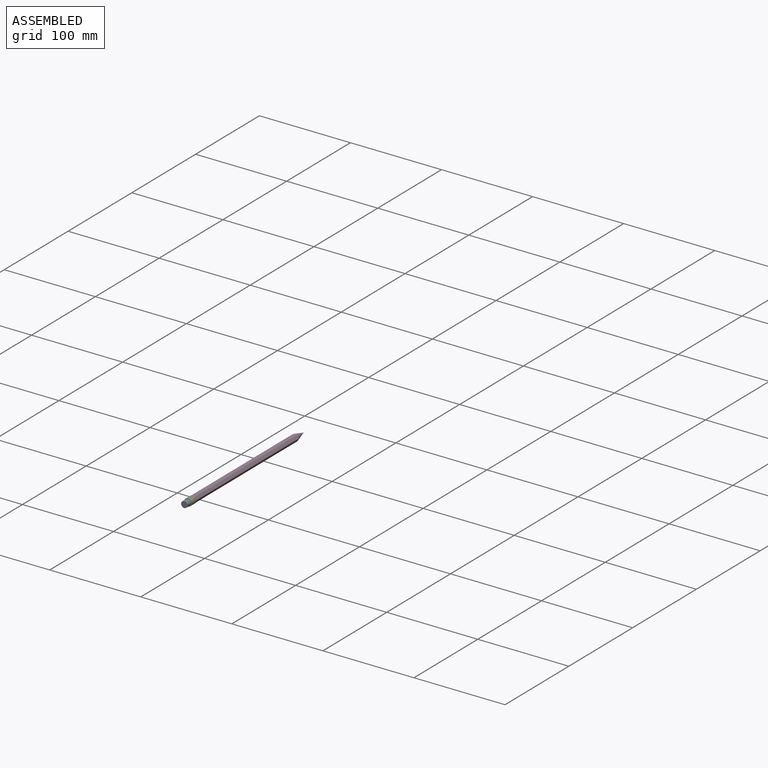
[diagram: assembled view]
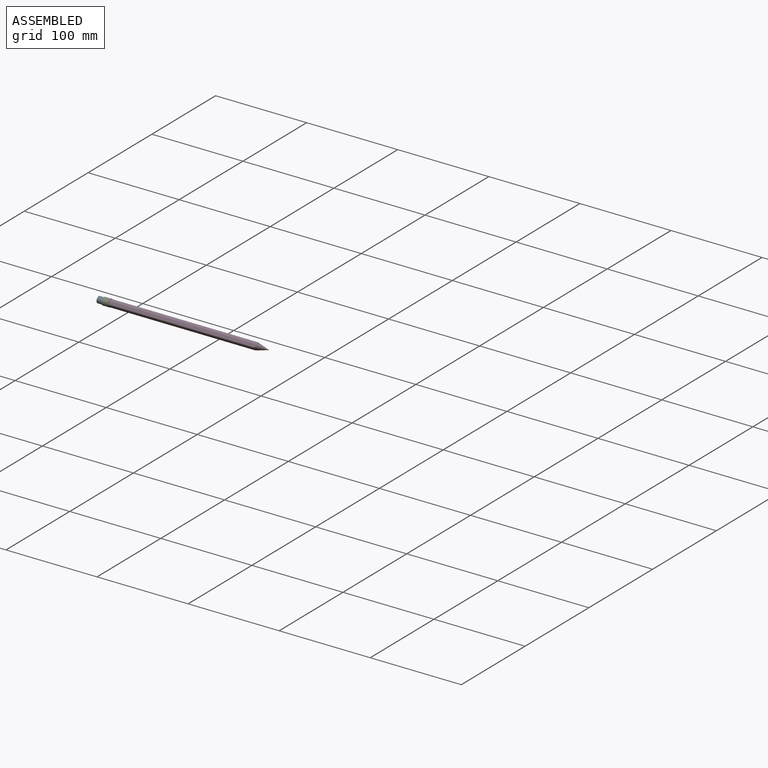
[diagram: assembled view, second angle]
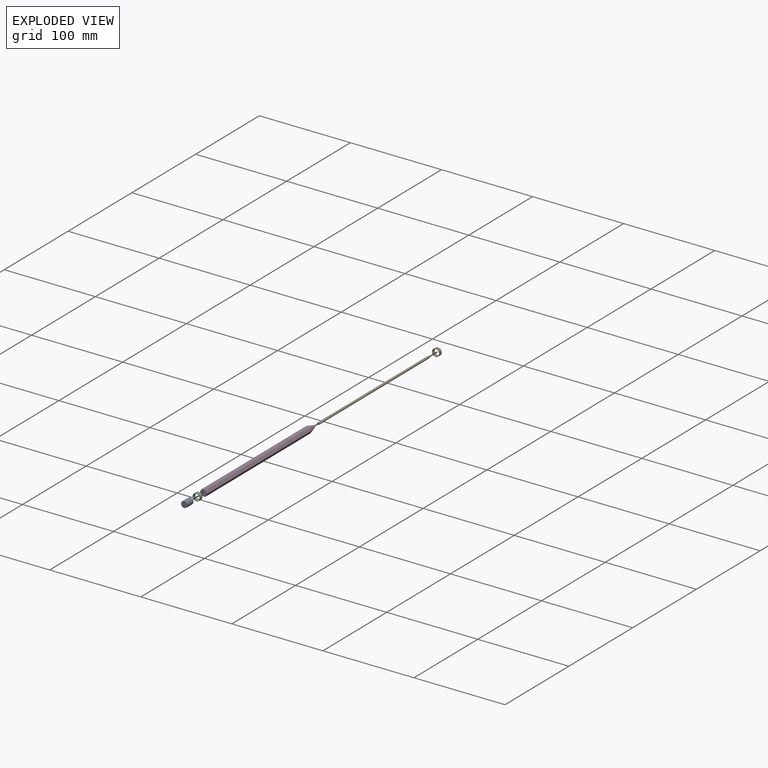
[diagram: exploded view]
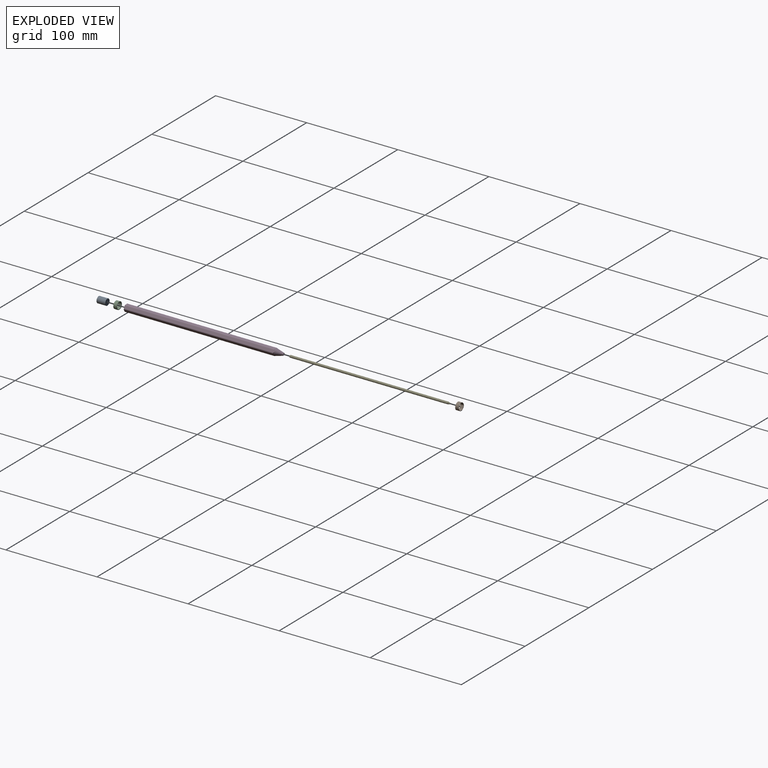
[diagram: exploded view, second angle]
ASSEMBLY  parts=5 mates=4
PART A: 3 faces, bbox 6.9x9.5x6.9 mm
  f0: cylinder r=3.47mm len=9.53mm, axis (0,1,0), area 207.5mm2, adj f1,f2
  f1: plane 6.93x6.93mm, normal (0,-1,0), area 37.8mm2, adj f0
  f2: plane 6.93x6.93mm, normal (0,1,0), area 37.8mm2, adj f0
PART B: 15 faces, bbox 8.1x3.8x8.1 mm
  f0: plane 3.81x2.56mm, normal (-0.05,0,-1), area 9.8mm2, adj f7,f8,f9,f14
  f1: plane 3.81x2.29mm, normal (-0.89,0,-0.45), area 9.8mm2, adj f7,f8,f9,f10
  f2: plane 3.81x2.15mm, normal (-0.84,0,0.55), area 9.8mm2, adj f7,f8,f10,f11
  f3: plane 3.81x2.56mm, normal (0.05,0,1), area 9.8mm2, adj f7,f8,f11,f12
  f4: plane 3.81x2.29mm, normal (0.89,0,0.45), area 9.8mm2, adj f7,f8,f12,f13
  f5: cylinder r=4.06mm len=8.12mm, axis (0,1,0), area 97.1mm2, adj f7,f8
  f6: plane 3.81x2.15mm, normal (0.84,0,-0.55), area 9.8mm2, adj f7,f8,f13,f14
  f7: plane 8.12x8.12mm, normal (0,-1,0), area 10mm2, adj f0,f1,f2,f3,f4,f5,f6,f9
  f8: plane 8.12x8.12mm, normal (0,1,0), area 10mm2, adj f0,f1,f2,f3,f4,f5,f6,f9
  f9: cylinder r=1.27mm len=3.81mm, axis (0,-1,0), area 5.1mm2, adj f0,f1,f7,f8
  f10: cylinder r=1.27mm len=3.81mm, axis (0,-1,0), area 5.1mm2, adj f1,f2,f7,f8
  f11: cylinder r=1.27mm len=3.81mm, axis (0,-1,0), area 5.1mm2, adj f2,f3,f7,f8
  f12: cylinder r=1.27mm len=3.81mm, axis (0,-1,0), area 5.1mm2, adj f3,f4,f7,f8
  f13: cylinder r=1.27mm len=3.81mm, axis (0,-1,0), area 5.1mm2, adj f4,f6,f7,f8
  f14: cylinder r=1.27mm len=3.81mm, axis (0,-1,0), area 5.1mm2, adj f0,f6,f7,f8
PART C: 4 faces, bbox 8.1x3.8x8.1 mm
  f0: cylinder r=3.49mm len=6.99mm, axis (0,1,0), area 83.6mm2, adj f2,f3
  f1: cylinder r=4.06mm len=8.13mm, axis (0,1,0), area 97.3mm2, adj f2,f3
  f2: plane 8.13x8.13mm, normal (0,-1,0), area 13.6mm2, adj f0,f1
  f3: plane 8.13x8.13mm, normal (0,1,0), area 13.6mm2, adj f0,f1
PART D: 15 faces, bbox 7.7x173.2x7.7 mm
  f0: plane 165.07x2.24mm, normal (0.87,0,0.49), area 422.9mm2, adj f7,f8,f9,f14
  f1: plane 165.07x2.57mm, normal (0.01,0,1), area 422.9mm2, adj f7,f8,f9,f10
  f2: plane 165.07x2.21mm, normal (-0.86,0,0.51), area 422.9mm2, adj f7,f8,f10,f11
  f3: plane 165.07x2.24mm, normal (-0.87,0,-0.49), area 422.9mm2, adj f7,f8,f11,f12
  f4: plane 165.07x2.57mm, normal (-0.01,0,-1), area 422.9mm2, adj f7,f8,f12,f13
  f5: plane 165.07x2.21mm, normal (0.86,0,-0.51), area 422.9mm2, adj f7,f8,f13,f14
  f6: cylinder r=1.27mm len=173.17mm, axis (0,1,0), area 1381.8mm2, adj f7,f8
  f7: plane 7.67x7.02mm, normal (0,1,0), area 36.7mm2, adj f0,f1,f2,f3,f4,f5,f6,f9
  f8: cone r=0mm half-angle=15.3deg, axis (0,1,0), area 138.6mm2, adj f0,f1,f2,f3,f4,f5,f6,f9
  f9: cylinder r=1.27mm len=164.24mm, axis (0,1,0), area 218.1mm2, adj f0,f1,f7,f8
  f10: cylinder r=1.27mm len=164.24mm, axis (0,1,0), area 218.1mm2, adj f1,f2,f7,f8
  f11: cylinder r=1.27mm len=164.24mm, axis (0,1,0), area 218.1mm2, adj f2,f3,f7,f8
  f12: cylinder r=1.27mm len=164.24mm, axis (0,1,0), area 218.1mm2, adj f3,f4,f7,f8
  f13: cylinder r=1.27mm len=164.24mm, axis (0,1,0), area 218.1mm2, adj f4,f5,f7,f8
  f14: cylinder r=1.27mm len=164.24mm, axis (0,1,0), area 218.1mm2, adj f0,f5,f7,f8
PART E: 3 faces, bbox 2.5x177.8x2.5 mm
  f0: cylinder r=1.27mm len=173.17mm, axis (0,1,0), area 1381.8mm2, adj f1,f2
  f1: plane 2.54x2.54mm, normal (0,-1,0), area 5.1mm2, adj f0
  f2: cone r=1.27mm half-angle=15.3deg, axis (0,-1,0), area 19.2mm2, adj f0
PLACE A rot(axis=(1,0,0),180deg) t=(27.82,76.03,10.64)mm
PLACE B t=(27.82,82.69,10.64)mm
PLACE C rot(axis=(1,0,0),180deg) t=(27.82,78.88,10.64)mm
PLACE D rot(axis=(1,0,0),180deg) t=(27.82,169.69,10.64)mm
PLACE E t=(27.82,169.69,10.64)mm
MATE fastened C.f0 <-> A.f0  axis (0,1,0) through (27.82,80.79,10.64)mm
MATE fastened A.f0 <-> D.f6  axis (0,1,0) through (27.82,80.79,10.64)mm
MATE fastened B.f5 <-> E.f0  axis (0,-1,0) through (27.82,80.79,10.64)mm
MATE fastened D.f6 <-> E.f0  axis (0,-1,0) through (27.82,80.79,10.64)mm
